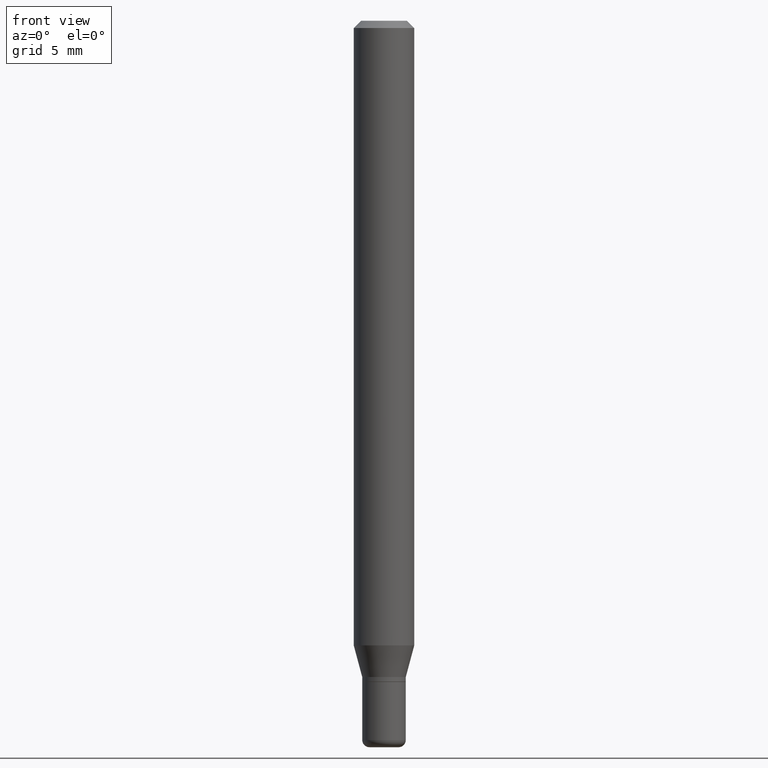
[diagram: clean part render]
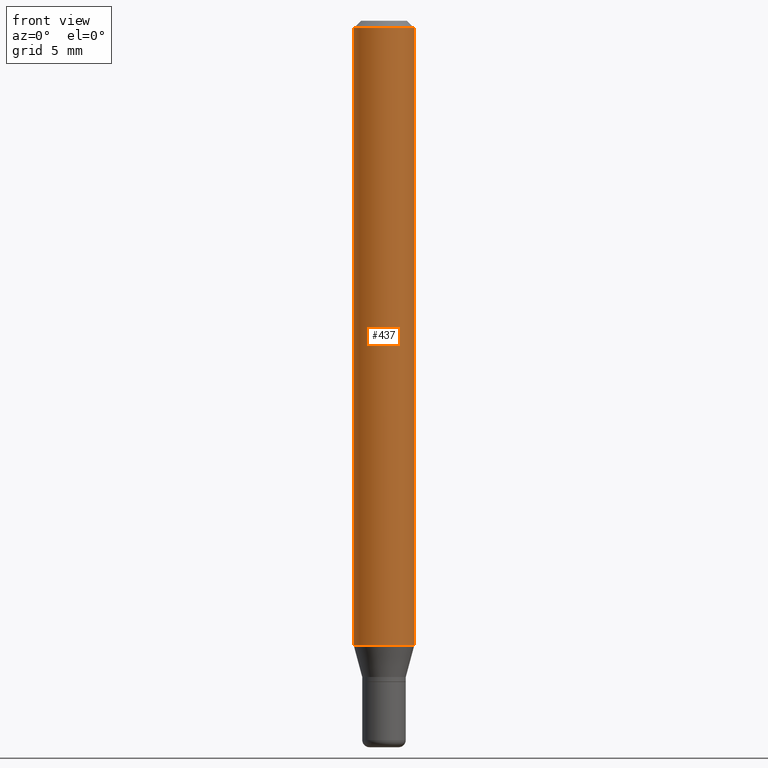
[diagram: same view with one face highlighted and labeled with its STEP entity id]
A machine part, front view. The second image highlights one B-rep face of the part: STEP entity #437.
In plain terms, the highlighted cylindrical surface (edge-blend (fillet) strip) has radius 1.5875 mm, axis along (-0, 0, 1).
Its self-contained STEP definition (entity closure, byte-faithful):
#2 = DIRECTION ( 'NONE',  ( -2.445468806185136597E-29, 3.491481338843145583E-15, 1.000000000000000000 ) ) ;
#8 = DIRECTION ( 'NONE',  ( 1.000000000000000000, -6.982962677686266711E-15, 0.000000000000000000 ) ) ;
#10 = DIRECTION ( 'NONE',  ( -2.445468806185136877E-29, 3.491481338843145188E-15, 1.000000000000000000 ) ) ;
#23 = CIRCLE ( 'NONE', #88, 0.06250000000000000000 ) ;
#63 = VECTOR ( 'NONE', #10, 39.37007874015748143 ) ;
#75 = DIRECTION ( 'NONE',  ( 1.000000000000000000, -6.982962677686266711E-15, 4.876176775795935793E-29 ) ) ;
#88 = AXIS2_PLACEMENT_3D ( 'NONE', #364, #480, #210 ) ;
#89 = CARTESIAN_POINT ( 'NONE',  ( 0.06250000000000000000, -4.939360630858633822E-15, -1.289689110867545008 ) ) ;
#99 = VERTEX_POINT ( 'NONE', #440 ) ;
#100 = ORIENTED_EDGE ( 'NONE', *, *, #207, .F. ) ;
#107 = EDGE_CURVE ( 'NONE', #99, #486, #23, .T. ) ;
#114 = EDGE_CURVE ( 'NONE', #486, #424, #128, .T. ) ;
#128 = LINE ( 'NONE', #320, #63 ) ;
#155 = ORIENTED_EDGE ( 'NONE', *, *, #107, .T. ) ;
#160 = CIRCLE ( 'NONE', #254, 0.06250000000000000000 ) ;
#207 = EDGE_CURVE ( 'NONE', #285, #424, #160, .T. ) ;
#210 = DIRECTION ( 'NONE',  ( 1.000000000000000000, -6.982962677686262766E-15, 0.000000000000000000 ) ) ;
#251 = CARTESIAN_POINT ( 'NONE',  ( 0.06250000000000000000, -4.888073874380378612E-16, -0.01499999999999970281 ) ) ;
#254 = AXIS2_PLACEMENT_3D ( 'NONE', #358, #2, #8 ) ;
#267 = CARTESIAN_POINT ( 'NONE',  ( 0.000000000000000000, 0.000000000000000000, 0.000000000000000000 ) ) ;
#272 = CARTESIAN_POINT ( 'NONE',  ( -0.06250000000000000000, 4.440892098500626162E-16, -3.074334431409316114E-30 ) ) ;
#285 = VERTEX_POINT ( 'NONE', #379 ) ;
#315 = VECTOR ( 'NONE', #510, 39.37007874015748143 ) ;
#317 = CYLINDRICAL_SURFACE ( 'NONE', #402, 0.06250000000000000000 ) ;
#320 = CARTESIAN_POINT ( 'NONE',  ( 0.06250000000000000000, -4.364351673553916694E-16, 3.047610484872459871E-30 ) ) ;
#355 = LINE ( 'NONE', #272, #315 ) ;
#358 = CARTESIAN_POINT ( 'NONE',  ( 3.668203209277632395E-31, -5.237222008264614861E-17, -0.01499999999999970281 ) ) ;
#364 = CARTESIAN_POINT ( 'NONE',  ( 3.153894490303225812E-29, -4.502925463503242152E-15, -1.289689110867545008 ) ) ;
#375 = ORIENTED_EDGE ( 'NONE', *, *, #431, .F. ) ;
#379 = CARTESIAN_POINT ( 'NONE',  ( -0.06250000000000000000, -1.833559631942881408E-15, -0.01499999999999970281 ) ) ;
#402 = AXIS2_PLACEMENT_3D ( 'NONE', #267, #435, #75 ) ;
#424 = VERTEX_POINT ( 'NONE', #251 ) ;
#431 = EDGE_CURVE ( 'NONE', #99, #285, #355, .T. ) ;
#435 = DIRECTION ( 'NONE',  ( -2.445468806185136597E-29, 3.491481338843145583E-15, 1.000000000000000000 ) ) ;
#437 = ADVANCED_FACE ( 'NONE', ( #516 ), #317, .T. ) ;
#440 = CARTESIAN_POINT ( 'NONE',  ( -0.06250000000000000000, -4.058836253653178747E-15, -1.289689110867545008 ) ) ;
#455 = EDGE_LOOP ( 'NONE', ( #375, #155, #517, #100 ) ) ;
#480 = DIRECTION ( 'NONE',  ( -2.445468806185136597E-29, 3.491481338843145583E-15, 1.000000000000000000 ) ) ;
#486 = VERTEX_POINT ( 'NONE', #89 ) ;
#510 = DIRECTION ( 'NONE',  ( -2.445468806185136877E-29, 3.491481338843145188E-15, 1.000000000000000000 ) ) ;
#516 = FACE_OUTER_BOUND ( 'NONE', #455, .T. ) ;
#517 = ORIENTED_EDGE ( 'NONE', *, *, #114, .T. ) ;